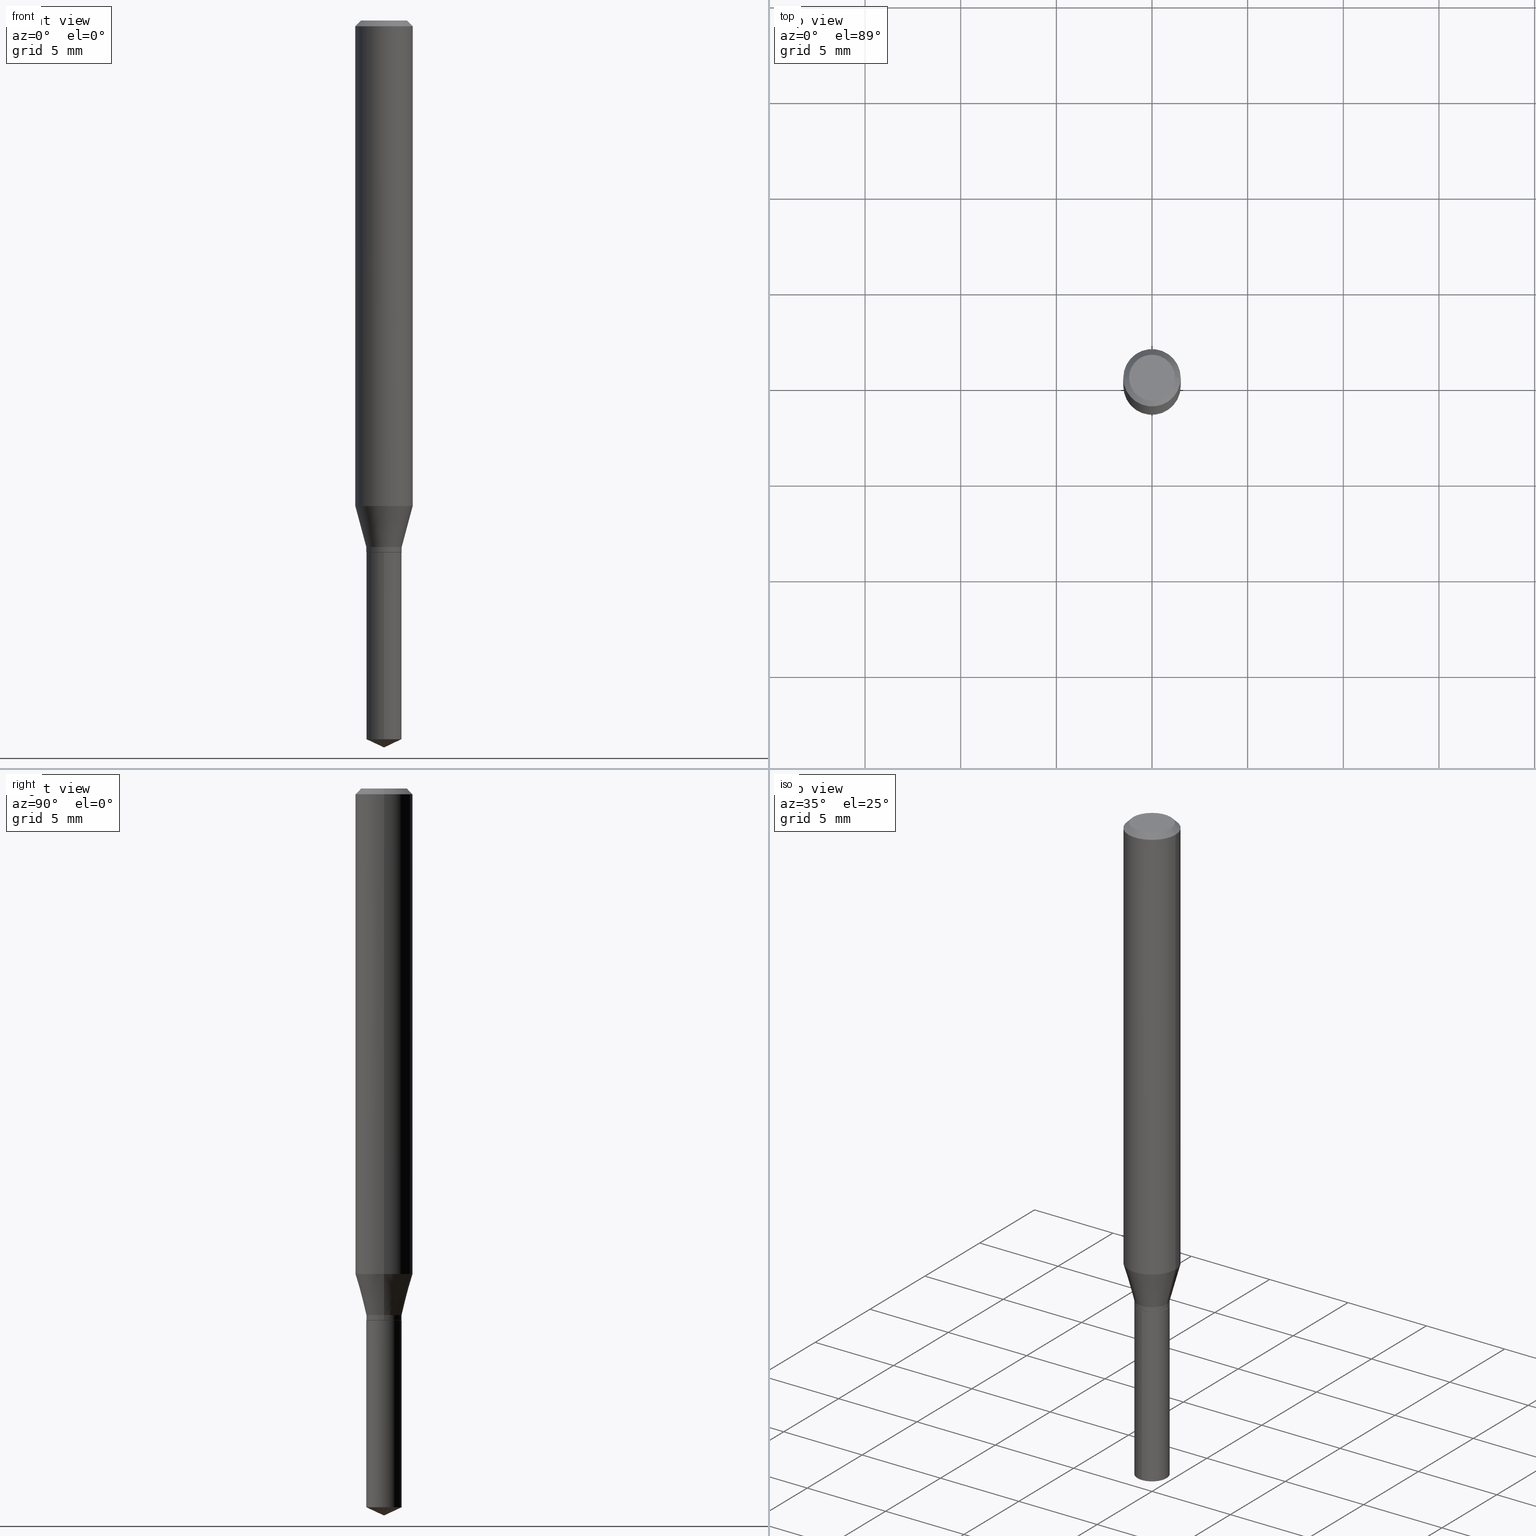
[diagram: canonical four-view strip — front | top / right | iso, engineering-drawing reading convention]
A machine part, canonical four-view strip (front | top / right | iso — engineering-drawing reading convention). The complete STEP part file that produces these views, byte-faithful:
ISO-10303-21;
HEADER;
FILE_DESCRIPTION (( 'STEP AP203' ),
    '1' );
FILE_NAME ('08363.STEP',
    '2024-04-24T14:36:49',
    ( '' ),
    ( '' ),
    'SwSTEP 2.0',
    'SolidWorks 2023',
    '' );
FILE_SCHEMA (( 'CONFIG_CONTROL_DESIGN' ));
ENDSEC;

DATA;
#1 = AXIS2_PLACEMENT_3D ( 'NONE', #402, #353, #133 ) ;
#2 = ORIENTED_EDGE ( 'NONE', *, *, #179, .T. ) ;
#3 = VERTEX_POINT ( 'NONE', #420 ) ;
#4 = APPROVAL ( #350, 'UNSPECIFIED' ) ;
#5 = ORIENTED_EDGE ( 'NONE', *, *, #47, .F. ) ;
#6 = CALENDAR_DATE ( 2024, 24, 4 ) ;
#7 = ORIENTED_EDGE ( 'NONE', *, *, #471, .F. ) ;
#8 = DIRECTION ( 'NONE',  ( -0.7071067811864176766, 7.493145998869883999E-15, 0.7071067811866772468 ) ) ;
#9 = CC_DESIGN_APPROVAL ( #4, ( #305 ) ) ;
#10 = EDGE_CURVE ( 'NONE', #390, #226, #368, .T. ) ;
#11 = CALENDAR_DATE ( 2024, 24, 4 ) ;
#12 = CARTESIAN_POINT ( 'NONE',  ( 0.000000000000000000, 0.000000000000000000, 0.000000000000000000 ) ) ;
#13 = ADVANCED_FACE ( 'NONE', ( #482 ), #489, .F. ) ;
#14 = PLANE ( 'NONE',  #290 ) ;
#15 = ADVANCED_FACE ( 'NONE', ( #487 ), #387, .T. ) ;
#16 = CONICAL_SURFACE ( 'NONE', #326, 0.03639999999999998792, 0.2617993877991501295 ) ;
#17 = APPROVAL_ROLE ( '' ) ;
#18 = DIRECTION ( 'NONE',  ( -2.445402730703145379E-29, 3.491575962694140016E-15, 1.000000000000000000 ) ) ;
#19 = LINE ( 'NONE', #92, #81 ) ;
#20 = PRODUCT_DEFINITION_SHAPE ( 'NONE', 'NONE',  #305 ) ;
#21 = FACE_OUTER_BOUND ( 'NONE', #188, .T. ) ;
#22 = FACE_OUTER_BOUND ( 'NONE', #191, .T. ) ;
#23 = VECTOR ( 'NONE', #18, 39.37007874015748143 ) ;
#24 = CARTESIAN_POINT ( 'NONE',  ( 2.649909998382213991E-29, -3.783369178770431629E-15, -1.083599999999999897 ) ) ;
#25 = CARTESIAN_POINT ( 'NONE',  ( 3.658712932950369103E-29, -5.223539666176875291E-15, -1.496099999999999985 ) ) ;
#26 = DIRECTION ( 'NONE',  ( 1.000000000000000000, -6.982962677686273810E-15, 0.000000000000000000 ) ) ;
#27 = EDGE_CURVE ( 'NONE', #270, #308, #448, .T. ) ;
#28 = DESIGN_CONTEXT ( 'detailed design', #321, 'design' ) ;
#29 = CARTESIAN_POINT ( 'NONE',  ( 8.265746106709734507E-48, -1.180129479067563789E-33, -3.380025165646692144E-19 ) ) ;
#30 = EDGE_LOOP ( 'NONE', ( #300, #99, #490, #338 ) ) ;
#31 = PLANE ( 'NONE',  #115 ) ;
#32 = ORIENTED_EDGE ( 'NONE', *, *, #378, .F. ) ;
#33 = VERTEX_POINT ( 'NONE', #453 ) ;
#34 = DIRECTION ( 'NONE',  ( 1.000000000000000000, -6.982962677686262766E-15, 0.000000000000000000 ) ) ;
#35 = ORIENTED_EDGE ( 'NONE', *, *, #483, .F. ) ;
#36 = VECTOR ( 'NONE', #71, 39.37007874015748854 ) ;
#37 = VERTEX_POINT ( 'NONE', #233 ) ;
#38 = CC_DESIGN_PERSON_AND_ORGANIZATION_ASSIGNMENT ( #307, #457, ( #268 ) ) ;
#39 = CONICAL_SURFACE ( 'NONE', #96, 84.42940631927304196, 1.134464013796310011 ) ;
#40 = AXIS2_PLACEMENT_3D ( 'NONE', #359, #215, #143 ) ;
#41 = ORIENTED_EDGE ( 'NONE', *, *, #372, .T. ) ;
#42 = DATE_AND_TIME ( #204, #417 ) ;
#43 = ORIENTED_EDGE ( 'NONE', *, *, #474, .T. ) ;
#44 = DIRECTION ( 'NONE',  ( -2.445468806185136597E-29, 3.491481338843145583E-15, 1.000000000000000000 ) ) ;
#45 = PERSON_AND_ORGANIZATION_ROLE ( 'design_supplier' ) ;
#46 = ORIENTED_EDGE ( 'NONE', *, *, #254, .F. ) ;
#47 = EDGE_CURVE ( 'NONE', #76, #270, #48, .T. ) ;
#48 = LINE ( 'NONE', #465, #153 ) ;
#49 = AXIS2_PLACEMENT_3D ( 'NONE', #120, #171, #424 ) ;
#50 = ORIENTED_EDGE ( 'NONE', *, *, #341, .F. ) ;
#51 = DIRECTION ( 'NONE',  ( -1.000000000000000000, 6.982962677686266711E-15, 0.000000000000000000 ) ) ;
#52 = CYLINDRICAL_SURFACE ( 'NONE', #49, 0.05905000000000006771 ) ;
#53 = AXIS2_PLACEMENT_3D ( 'NONE', #269, #342, #277 ) ;
#54 = EDGE_CURVE ( 'NONE', #226, #390, #60, .T. ) ;
#55 = APPROVAL_PERSON_ORGANIZATION ( #77, #275, #346 ) ;
#56 = DIRECTION ( 'NONE',  ( -2.445468806185136597E-29, 3.491481338843145583E-15, 1.000000000000000000 ) ) ;
#57 = COORDINATED_UNIVERSAL_TIME_OFFSET ( 5, 0, .BEHIND. ) ;
#58 = LINE ( 'NONE', #472, #23 ) ;
#59 = CARTESIAN_POINT ( 'NONE',  ( 2.676565608369631794E-29, -3.821426325363822773E-15, -1.094499999999999806 ) ) ;
#60 = CIRCLE ( 'NONE', #429, 0.04724000000000000421 ) ;
#61 = AXIS2_PLACEMENT_3D ( 'NONE', #488, #151, #301 ) ;
#62 = EDGE_CURVE ( 'NONE', #270, #111, #415, .T. ) ;
#63 = DIRECTION ( 'NONE',  ( 1.000000000000000000, -6.982962677686266711E-15, 4.876185090822587894E-29 ) ) ;
#64 = ORIENTED_EDGE ( 'NONE', *, *, #179, .F. ) ;
#65 = LINE ( 'NONE', #217, #452 ) ;
#66 = CARTESIAN_POINT ( 'NONE',  ( 0.03639999999999998792, -4.037549020238212015E-15, -1.083599999999999897 ) ) ;
#67 = ORIENTED_EDGE ( 'NONE', *, *, #170, .T. ) ;
#68 = DIRECTION ( 'NONE',  ( 0.7071067811865453523, -7.319954787623248157E-15, -0.7071067811865496822 ) ) ;
#69 = VERTEX_POINT ( 'NONE', #356 ) ;
#70 = APPROVAL ( #286, 'UNSPECIFIED' ) ;
#71 = DIRECTION ( 'NONE',  ( 0.7071067811864176766, -2.468850131080897064E-15, 0.7071067811866772468 ) ) ;
#72 = PERSON_AND_ORGANIZATION_ROLE ( 'creator' ) ;
#73 = AXIS2_PLACEMENT_3D ( 'NONE', #437, #134, #123 ) ;
#74 = DIRECTION ( 'NONE',  ( -2.445468806185136597E-29, 3.491481338843145583E-15, 1.000000000000000000 ) ) ;
#75 = VECTOR ( 'NONE', #438, 39.37007874015747433 ) ;
#76 = VERTEX_POINT ( 'NONE', #168 ) ;
#77 = PERSON_AND_ORGANIZATION ( #178, #377 ) ;
#78 = APPROVAL_DATE_TIME ( #42, #4 ) ;
#79 = PERSON_AND_ORGANIZATION ( #178, #377 ) ;
#80 = DIRECTION ( 'NONE',  ( -2.445468806185136597E-29, 3.491481338843145583E-15, 1.000000000000000000 ) ) ;
#81 = VECTOR ( 'NONE', #398, 39.37007874015748143 ) ;
#82 =( NAMED_UNIT ( * ) PLANE_ANGLE_UNIT ( ) SI_UNIT ( $, .RADIAN. ) );
#83 = CARTESIAN_POINT ( 'NONE',  ( 0.03590000000000000135, -4.072114685492760152E-15, -1.094500000000000028 ) ) ;
#84 = ORIENTED_EDGE ( 'NONE', *, *, #254, .T. ) ;
#85 = PERSON_AND_ORGANIZATION ( #178, #377 ) ;
#86 = CARTESIAN_POINT ( 'NONE',  ( 2.649909998382213991E-29, -3.783369178770431629E-15, -1.083599999999999897 ) ) ;
#87 = DIRECTION ( 'NONE',  ( 1.000000000000000000, -6.982962677686266711E-15, 4.876185090822587894E-29 ) ) ;
#88 = DATE_AND_TIME ( #213, #194 ) ;
#89 = CIRCLE ( 'NONE', #469, 0.03640000000000000180 ) ;
#90 = CARTESIAN_POINT ( 'NONE',  ( -0.03639999999999998792, -3.542887325915740068E-15, -1.083599999999999897 ) ) ;
#91 = CARTESIAN_POINT ( 'NONE',  ( 0.05905000000000011628, -3.900574887644841668E-15, -0.9990690492085645413 ) ) ;
#92 = CARTESIAN_POINT ( 'NONE',  ( 0.05905000000000006771, -4.123439461173745257E-16, 2.879382386107503723E-30 ) ) ;
#93 = EDGE_CURVE ( 'NONE', #455, #33, #334, .T. ) ;
#94 = CARTESIAN_POINT ( 'NONE',  ( 2.676565608369631794E-29, -3.821426325363822773E-15, -1.094499999999999806 ) ) ;
#95 = ADVANCED_FACE ( 'NONE', ( #391 ), #39, .T. ) ;
#96 = AXIS2_PLACEMENT_3D ( 'NONE', #172, #426, #236 ) ;
#97 = CARTESIAN_POINT ( 'NONE',  ( 3.658567025404975087E-29, -5.223746797786701947E-15, -1.496099999999999985 ) ) ;
#98 = CIRCLE ( 'NONE', #126, 0.03640000000000000180 ) ;
#99 = ORIENTED_EDGE ( 'NONE', *, *, #246, .T. ) ;
#100 = EDGE_CURVE ( 'NONE', #111, #270, #247, .T. ) ;
#101 = DIMENSIONAL_EXPONENTS ( 1.000000000000000000, 0.000000000000000000, 0.000000000000000000, 0.000000000000000000, 0.000000000000000000, 0.000000000000000000, 0.000000000000000000 ) ;
#102 = CARTESIAN_POINT ( 'NONE',  ( 4.132873053354867254E-48, -5.900647395337818946E-34, -1.690012582823346072E-19 ) ) ;
#103 = DIRECTION ( 'NONE',  ( 1.000000000000000000, -6.982962677686262766E-15, 0.000000000000000000 ) ) ;
#104 = FACE_OUTER_BOUND ( 'NONE', #485, .T. ) ;
#105 = MECHANICAL_CONTEXT ( 'NONE', #315, 'mechanical' ) ;
#106 = DIRECTION ( 'NONE',  ( 0.2588190451025214611, 1.565188264969621573E-15, 0.9659258262890682012 ) ) ;
#107 = AXIS2_PLACEMENT_3D ( 'NONE', #102, #299, #364 ) ;
#108 = ORIENTED_EDGE ( 'NONE', *, *, #100, .F. ) ;
#109 = VERTEX_POINT ( 'NONE', #351 ) ;
#110 = ADVANCED_FACE ( 'NONE', ( #475 ), #128, .T. ) ;
#111 = VERTEX_POINT ( 'NONE', #90 ) ;
#112 = VERTEX_POINT ( 'NONE', #83 ) ;
#113 = ORIENTED_EDGE ( 'NONE', *, *, #10, .F. ) ;
#114 = AXIS2_PLACEMENT_3D ( 'NONE', #250, #258, #332 ) ;
#115 = AXIS2_PLACEMENT_3D ( 'NONE', #193, #139, #362 ) ;
#116 = APPLICATION_PROTOCOL_DEFINITION ( 'international standard', 'config_control_design', 1994, #315 ) ;
#117 = EDGE_LOOP ( 'NONE', ( #199, #43, #330, #206 ) ) ;
#118 = CARTESIAN_POINT ( 'NONE',  ( -0.05904999999999999832, 3.711095515056362547E-16, -0.01181000000000007044 ) ) ;
#119 = EDGE_LOOP ( 'NONE', ( #160, #454, #306, #50 ) ) ;
#120 = CARTESIAN_POINT ( 'NONE',  ( 0.000000000000000000, 0.000000000000000000, 0.000000000000000000 ) ) ;
#121 = ORIENTED_EDGE ( 'NONE', *, *, #62, .T. ) ;
#122 = AXIS2_PLACEMENT_3D ( 'NONE', #276, #318, #349 ) ;
#123 = DIRECTION ( 'NONE',  ( 1.000000000000000000, -6.982962677686267499E-15, 4.876176775795936353E-29 ) ) ;
#124 = DIRECTION ( 'NONE',  ( 1.000000000000000000, -6.982962677686265133E-15, 0.000000000000000000 ) ) ;
#125 = CC_DESIGN_PERSON_AND_ORGANIZATION_ASSIGNMENT ( #386, #72, ( #305 ) ) ;
#126 = AXIS2_PLACEMENT_3D ( 'NONE', #287, #180, #174 ) ;
#127 = CARTESIAN_POINT ( 'NONE',  ( 2.888098660104663766E-31, -4.123439461173779647E-17, -0.01181000000000007044 ) ) ;
#128 = CYLINDRICAL_SURFACE ( 'NONE', #73, 0.03639999999999998792 ) ;
#129 = DIRECTION ( 'NONE',  ( -2.445468806185136877E-29, 3.491481338843145188E-15, 1.000000000000000000 ) ) ;
#130 = CARTESIAN_POINT ( 'NONE',  ( -0.03639999999999998792, -3.524731622953755642E-15, -1.083599999999999897 ) ) ;
#131 = ADVANCED_FACE ( 'NONE', ( #21 ), #190, .T. ) ;
#132 = FACE_OUTER_BOUND ( 'NONE', #119, .T. ) ;
#133 = DIRECTION ( 'NONE',  ( -6.982962677686267499E-15, -1.000000000000000000, 3.520397390770507907E-15 ) ) ;
#134 = DIRECTION ( 'NONE',  ( -2.445468806185136597E-29, 3.491481338843145583E-15, 1.000000000000000000 ) ) ;
#135 = DIRECTION ( 'NONE',  ( -2.445468806185136597E-29, 3.491481338843145583E-15, 1.000000000000000000 ) ) ;
#136 = CARTESIAN_POINT ( 'NONE',  ( -0.03639999999999998792, 2.586375558166763818E-16, -1.790492372852785260E-30 ) ) ;
#137 = AXIS2_PLACEMENT_3D ( 'NONE', #288, #436, #243 ) ;
#138 = CARTESIAN_POINT ( 'NONE',  ( 0.000000000000000000, 0.000000000000000000, 0.000000000000000000 ) ) ;
#139 = DIRECTION ( 'NONE',  ( -2.438088387897960049E-29, 3.491481338843145188E-15, 1.000000000000000000 ) ) ;
#140 = DIRECTION ( 'NONE',  ( -2.445468806185136597E-29, 3.491481338843145583E-15, 1.000000000000000000 ) ) ;
#141 = VECTOR ( 'NONE', #363, 39.37007874015748143 ) ;
#142 = CARTESIAN_POINT ( 'NONE',  ( 0.03590000000000000135, -4.072114685492760152E-15, -1.094500000000000028 ) ) ;
#143 = DIRECTION ( 'NONE',  ( 1.000000000000000000, -6.982962677686262766E-15, 0.000000000000000000 ) ) ;
#144 = LOCAL_TIME ( 10, 36, 49.00000000000000000, #320 ) ;
#145 = CARTESIAN_POINT ( 'NONE',  ( 2.675342873966538993E-29, -3.819680584694400481E-15, -1.093999999999999861 ) ) ;
#146 = DIRECTION ( 'NONE',  ( -6.328713451373357546E-15, -0.9063077870366467170, 0.4226182617407064357 ) ) ;
#147 = VERTEX_POINT ( 'NONE', #484 ) ;
#148 = PERSON_AND_ORGANIZATION ( #178, #377 ) ;
#149 = DIRECTION ( 'NONE',  ( -2.445468806185136597E-29, 3.491481338843145583E-15, 1.000000000000000000 ) ) ;
#150 = ORIENTED_EDGE ( 'NONE', *, *, #10, .T. ) ;
#151 = DIRECTION ( 'NONE',  ( -2.445468806185136597E-29, 3.491481338843145583E-15, 1.000000000000000000 ) ) ;
#152 = PRODUCT_RELATED_PRODUCT_CATEGORY ( 'detail', '', ( #244 ) ) ;
#153 = VECTOR ( 'NONE', #129, 39.37007874015748143 ) ;
#154 = ORIENTED_EDGE ( 'NONE', *, *, #296, .T. ) ;
#155 = ORIENTED_EDGE ( 'NONE', *, *, #159, .F. ) ;
#156 = AXIS2_PLACEMENT_3D ( 'NONE', #447, #253, #26 ) ;
#157 = ORIENTED_EDGE ( 'NONE', *, *, #54, .F. ) ;
#158 = EDGE_LOOP ( 'NONE', ( #196, #150 ) ) ;
#159 = EDGE_CURVE ( 'NONE', #109, #111, #401, .T. ) ;
#160 = ORIENTED_EDGE ( 'NONE', *, *, #483, .T. ) ;
#161 = COORDINATED_UNIVERSAL_TIME_OFFSET ( 5, 0, .BEHIND. ) ;
#162 = EDGE_LOOP ( 'NONE', ( #413, #468, #232, #5 ) ) ;
#163 = MANIFOLD_SOLID_BREP ( 'Body-Move/Copy2[1]', #358 ) ;
#164 = APPLICATION_PROTOCOL_DEFINITION ( 'international standard', 'config_control_design', 1994, #321 ) ;
#165 = DIRECTION ( 'NONE',  ( 6.982962677686265922E-15, 1.000000000000000000, -3.491575962694140016E-15 ) ) ;
#166 = CC_DESIGN_SECURITY_CLASSIFICATION ( #379, ( #268 ) ) ;
#167 = MANIFOLD_SOLID_BREP ( 'Body-Move/Copy2[2]', #345 ) ;
#168 = CARTESIAN_POINT ( 'NONE',  ( 0.03639999999999998792, -4.073860426162180867E-15, -1.093999999999999861 ) ) ;
#169 =( NAMED_UNIT ( * ) SI_UNIT ( $, .STERADIAN. ) SOLID_ANGLE_UNIT ( ) );
#170 = EDGE_CURVE ( 'NONE', #418, #3, #476, .T. ) ;
#171 = DIRECTION ( 'NONE',  ( -2.445468806185136597E-29, 3.491481338843145583E-15, 1.000000000000000000 ) ) ;
#172 = CARTESIAN_POINT ( 'NONE',  ( -9.261705871415894043E-28, 1.322399773465276608E-13, 37.87397874015748300 ) ) ;
#173 = CONICAL_SURFACE ( 'NONE', #192, 0.05904999999999999832, 0.7853981633974452814 ) ;
#174 = DIRECTION ( 'NONE',  ( -6.982962677686265922E-15, -1.000000000000000000, 0.000000000000000000 ) ) ;
#175 = ORIENTED_EDGE ( 'NONE', *, *, #237, .F. ) ;
#176 = CARTESIAN_POINT ( 'NONE',  ( 8.265746106709734507E-48, -1.180129479067563789E-33, -3.380025165646692144E-19 ) ) ;
#177 = FACE_OUTER_BOUND ( 'NONE', #274, .T. ) ;
#178 = PERSON ( 'UNSPECIFIED', 'UNSPECIFIED', 'UNSPECIFIED', ('UNSPECIFIED'), ('UNSPECIFIED'), ('UNSPECIFIED') ) ;
#179 = EDGE_CURVE ( 'NONE', #109, #76, #248, .T. ) ;
#180 = DIRECTION ( 'NONE',  ( -2.445402730703145379E-29, 3.491575962694140016E-15, 1.000000000000000000 ) ) ;
#181 = CARTESIAN_POINT ( 'NONE',  ( 0.03639999999999998792, -4.037549020238212015E-15, -1.083599999999999897 ) ) ;
#182 = DIRECTION ( 'NONE',  ( -2.445402730703145379E-29, 3.491575962694140016E-15, 1.000000000000000000 ) ) ;
#183 = CONICAL_SURFACE ( 'NONE', #40, 0.03639999999999998792, 0.2617993877991501295 ) ;
#184 = ADVANCED_BREP_SHAPE_REPRESENTATION ( '08363', ( #163, #167, #295 ), #249 ) ;
#185 = DIRECTION ( 'NONE',  ( 1.000000000000000000, -6.982962677686267499E-15, 4.876176775795936353E-29 ) ) ;
#186 = DIRECTION ( 'NONE',  ( -2.445468806185136597E-29, 3.491481338843145583E-15, 1.000000000000000000 ) ) ;
#187 = CC_DESIGN_DATE_AND_TIME_ASSIGNMENT ( #88, #434, ( #379 ) ) ;
#188 = EDGE_LOOP ( 'NONE', ( #220, #374, #216, #380 ) ) ;
#189 = DIRECTION ( 'NONE',  ( 6.439704144417012209E-15, 0.9063077870366496036, 0.4226182617407001074 ) ) ;
#190 = CYLINDRICAL_SURFACE ( 'NONE', #227, 0.03640000000000000180 ) ;
#191 = EDGE_LOOP ( 'NONE', ( #266, #251, #200, #64 ) ) ;
#192 = AXIS2_PLACEMENT_3D ( 'NONE', #127, #240, #51 ) ;
#193 = CARTESIAN_POINT ( 'NONE',  ( -2.313886645776993387E-30, -7.985782354703010177E-15, -1.094500000000000028 ) ) ;
#194 = LOCAL_TIME ( 10, 36, 49.00000000000000000, #57 ) ;
#195 = EDGE_CURVE ( 'NONE', #147, #261, #361, .T. ) ;
#196 = ORIENTED_EDGE ( 'NONE', *, *, #54, .T. ) ;
#197 = DIRECTION ( 'NONE',  ( -6.982962677686265922E-15, -1.000000000000000000, 3.752538452835526126E-15 ) ) ;
#198 = CC_DESIGN_PERSON_AND_ORGANIZATION_ASSIGNMENT ( #460, #45, ( #268 ) ) ;
#199 = ORIENTED_EDGE ( 'NONE', *, *, #294, .T. ) ;
#200 = ORIENTED_EDGE ( 'NONE', *, *, #202, .T. ) ;
#201 = ORIENTED_EDGE ( 'NONE', *, *, #294, .F. ) ;
#202 = EDGE_CURVE ( 'NONE', #112, #76, #325, .T. ) ;
#203 = LINE ( 'NONE', #442, #214 ) ;
#204 = CALENDAR_DATE ( 2024, 24, 4 ) ;
#205 = LINE ( 'NONE', #344, #431 ) ;
#206 = ORIENTED_EDGE ( 'NONE', *, *, #210, .F. ) ;
#207 = AXIS2_PLACEMENT_3D ( 'NONE', #404, #443, #185 ) ;
#208 = DIRECTION ( 'NONE',  ( 1.000000000000000000, -6.982962677686262766E-15, 0.000000000000000000 ) ) ;
#209 = DIRECTION ( 'NONE',  ( -2.445468806185136877E-29, 3.491481338843145188E-15, 1.000000000000000000 ) ) ;
#210 = EDGE_CURVE ( 'NONE', #456, #147, #225, .T. ) ;
#211 = AXIS2_PLACEMENT_3D ( 'NONE', #381, #44, #124 ) ;
#212 = DIRECTION ( 'NONE',  ( 1.000000000000000000, -6.982962677686265133E-15, 0.000000000000000000 ) ) ;
#213 = CALENDAR_DATE ( 2024, 24, 4 ) ;
#214 = VECTOR ( 'NONE', #209, 39.37007874015748143 ) ;
#215 = DIRECTION ( 'NONE',  ( -2.445468806185136597E-29, 3.491481338843145583E-15, 1.000000000000000000 ) ) ;
#216 = ORIENTED_EDGE ( 'NONE', *, *, #210, .T. ) ;
#217 = CARTESIAN_POINT ( 'NONE',  ( 3.658567025404975087E-29, -5.223746797786701947E-15, -1.496099999999999985 ) ) ;
#218 = ADVANCED_FACE ( 'NONE', ( #479 ), #310, .T. ) ;
#219 = EDGE_CURVE ( 'NONE', #33, #455, #412, .T. ) ;
#220 = ORIENTED_EDGE ( 'NONE', *, *, #474, .F. ) ;
#221 = CARTESIAN_POINT ( 'NONE',  ( 0.04724000000000000421, -3.852183633974369345E-16, -3.380025165621689721E-19 ) ) ;
#222 = CC_DESIGN_APPROVAL ( #70, ( #379 ) ) ;
#223 = EDGE_LOOP ( 'NONE', ( #302, #67, #201 ) ) ;
#224 = ORIENTED_EDGE ( 'NONE', *, *, #27, .T. ) ;
#225 = LINE ( 'NONE', #376, #441 ) ;
#226 = VERTEX_POINT ( 'NONE', #392 ) ;
#227 = AXIS2_PLACEMENT_3D ( 'NONE', #403, #328, #292 ) ;
#228 = PERSON_AND_ORGANIZATION ( #178, #377 ) ;
#229 = CONICAL_SURFACE ( 'NONE', #114, 0.05904999999999999832, 0.7853981633974452814 ) ;
#230 = DIRECTION ( 'NONE',  ( 1.000000000000000000, 0.000000000000000000, 0.000000000000000000 ) ) ;
#231 = ORIENTED_EDGE ( 'NONE', *, *, #296, .F. ) ;
#232 = ORIENTED_EDGE ( 'NONE', *, *, #62, .F. ) ;
#233 = CARTESIAN_POINT ( 'NONE',  ( -0.03590000000000000135, -3.563692256051836089E-15, -1.094500000000000028 ) ) ;
#234 = CARTESIAN_POINT ( 'NONE',  ( 2.888098660104663766E-31, -4.123439461173779647E-17, -0.01181000000000007044 ) ) ;
#235 = PERSON_AND_ORGANIZATION_ROLE ( 'classification_officer' ) ;
#236 = DIRECTION ( 'NONE',  ( -6.982962677686267499E-15, -1.000000000000000000, 3.520397390770507907E-15 ) ) ;
#237 = EDGE_CURVE ( 'NONE', #69, #308, #470, .T. ) ;
#238 = APPROVAL_DATE_TIME ( #478, #70 ) ;
#239 = CALENDAR_DATE ( 2024, 24, 4 ) ;
#240 = DIRECTION ( 'NONE',  ( 2.445468806185136597E-29, -3.491481338843145583E-15, -1.000000000000000000 ) ) ;
#241 = LOCAL_TIME ( 10, 36, 49.00000000000000000, #161 ) ;
#242 = CARTESIAN_POINT ( 'NONE',  ( -2.541798414677438025E-16, -0.03640000000000515740, -1.479126401243157751 ) ) ;
#243 = DIRECTION ( 'NONE',  ( 1.000000000000000000, -6.982962677686273810E-15, 0.000000000000000000 ) ) ;
#244 = PRODUCT ( '08363', '08363', '', ( #105 ) ) ;
#245 = DIRECTION ( 'NONE',  ( 1.000000000000000000, -6.982962677686266711E-15, 4.876176775795936353E-29 ) ) ;
#246 = EDGE_CURVE ( 'NONE', #37, #109, #205, .T. ) ;
#247 = CIRCLE ( 'NONE', #375, 0.03639999999999998792 ) ;
#248 = CIRCLE ( 'NONE', #336, 0.03639999999999998792 ) ;
#249 =( GEOMETRIC_REPRESENTATION_CONTEXT ( 3 ) GLOBAL_UNCERTAINTY_ASSIGNED_CONTEXT ( ( #337 ) ) GLOBAL_UNIT_ASSIGNED_CONTEXT ( ( #273, #82, #169 ) ) REPRESENTATION_CONTEXT ( 'NONE', 'WORKASPACE' ) );
#250 = CARTESIAN_POINT ( 'NONE',  ( 2.888098660104663766E-31, -4.123439461173779647E-17, -0.01181000000000007044 ) ) ;
#251 = ORIENTED_EDGE ( 'NONE', *, *, #445, .T. ) ;
#252 = ADVANCED_FACE ( 'NONE', ( #427 ), #14, .F. ) ;
#253 = DIRECTION ( 'NONE',  ( -2.445468806185136597E-29, 3.491481338843145583E-15, 1.000000000000000000 ) ) ;
#254 = EDGE_CURVE ( 'NONE', #226, #33, #271, .T. ) ;
#255 = DIRECTION ( 'NONE',  ( -2.445468806185136597E-29, 3.491481338843145583E-15, 1.000000000000000000 ) ) ;
#256 = DIRECTION ( 'NONE',  ( -2.445402730703145379E-29, 3.491575962694140016E-15, 1.000000000000000000 ) ) ;
#257 = EDGE_LOOP ( 'NONE', ( #32, #157, #84, #316 ) ) ;
#258 = DIRECTION ( 'NONE',  ( 2.445468806185136597E-29, -3.491481338843145583E-15, -1.000000000000000000 ) ) ;
#259 = VECTOR ( 'NONE', #106, 39.37007874015747433 ) ;
#260 = CARTESIAN_POINT ( 'NONE',  ( 2.676565608369632355E-29, -3.821426325363822773E-15, -1.094500000000000028 ) ) ;
#261 = VERTEX_POINT ( 'NONE', #466 ) ;
#262 = CIRCLE ( 'NONE', #61, 0.03590000000000000135 ) ;
#263 = EDGE_LOOP ( 'NONE', ( #370, #365 ) ) ;
#264 = EDGE_CURVE ( 'NONE', #69, #33, #203, .T. ) ;
#265 = AXIS2_PLACEMENT_3D ( 'NONE', #234, #74, #384 ) ;
#266 = ORIENTED_EDGE ( 'NONE', *, *, #246, .F. ) ;
#267 = ORIENTED_EDGE ( 'NONE', *, *, #237, .T. ) ;
#268 = PRODUCT_DEFINITION_FORMATION_WITH_SPECIFIED_SOURCE ( 'ANY', '', #244, .NOT_KNOWN. ) ;
#269 = CARTESIAN_POINT ( 'NONE',  ( 2.676565608369631794E-29, -3.821426325363822773E-15, -1.094499999999999806 ) ) ;
#270 = VERTEX_POINT ( 'NONE', #181 ) ;
#271 = LINE ( 'NONE', #118, #329 ) ;
#272 = SECURITY_CLASSIFICATION_LEVEL ( 'unclassified' ) ;
#273 =( CONVERSION_BASED_UNIT ( 'INCH', #279 ) LENGTH_UNIT ( ) NAMED_UNIT ( #101 ) );
#274 = EDGE_LOOP ( 'NONE', ( #414, #267, #383, #446 ) ) ;
#275 = APPROVAL ( #423, 'UNSPECIFIED' ) ;
#276 = CARTESIAN_POINT ( 'NONE',  ( 2.888098660104663766E-31, -4.123439461173779647E-17, -0.01181000000000007044 ) ) ;
#277 = DIRECTION ( 'NONE',  ( -6.982962677686265922E-15, -1.000000000000000000, 3.752538452835526126E-15 ) ) ;
#278 = DATE_TIME_ROLE ( 'creation_date' ) ;
#279 = LENGTH_MEASURE_WITH_UNIT ( LENGTH_MEASURE( 0.02539999999999999897 ), #388 );
#280 = AXIS2_PLACEMENT_3D ( 'NONE', #29, #149, #63 ) ;
#281 = CIRCLE ( 'NONE', #137, 0.03590000000000000135 ) ;
#282 = ADVANCED_FACE ( 'NONE', ( #177 ), #284, .T. ) ;
#283 = CARTESIAN_POINT ( 'NONE',  ( 2.649909998382213991E-29, -3.783369178770431629E-15, -1.083599999999999897 ) ) ;
#284 = CYLINDRICAL_SURFACE ( 'NONE', #369, 0.05905000000000006771 ) ;
#285 = CC_DESIGN_DATE_AND_TIME_ASSIGNMENT ( #464, #278, ( #305 ) ) ;
#286 = APPROVAL_STATUS ( 'not_yet_approved' ) ;
#287 = CARTESIAN_POINT ( 'NONE',  ( 3.617132060270173400E-29, -5.164378622561984318E-15, -1.479126401243157751 ) ) ;
#288 = CARTESIAN_POINT ( 'NONE',  ( 2.676565608369632355E-29, -3.821426325363822773E-15, -1.094500000000000028 ) ) ;
#289 = LINE ( 'NONE', #130, #75 ) ;
#290 = AXIS2_PLACEMENT_3D ( 'NONE', #313, #462, #165 ) ;
#291 = FACE_OUTER_BOUND ( 'NONE', #373, .T. ) ;
#292 = DIRECTION ( 'NONE',  ( -6.982962677686265922E-15, -1.000000000000000000, 3.752538452835526126E-15 ) ) ;
#293 = DIRECTION ( 'NONE',  ( 1.000000000000000000, -6.982962677686262766E-15, 0.000000000000000000 ) ) ;
#294 = EDGE_CURVE ( 'NONE', #456, #3, #322, .T. ) ;
#295 = AXIS2_PLACEMENT_3D ( 'NONE', #12, #430, #230 ) ;
#296 = EDGE_CURVE ( 'NONE', #111, #69, #289, .T. ) ;
#297 = CARTESIAN_POINT ( 'NONE',  ( 0.05904999999999999832, -4.463468013801466955E-16, -0.01181000000000007044 ) ) ;
#298 = APPROVAL_ROLE ( '' ) ;
#299 = DIRECTION ( 'NONE',  ( 2.438088387897960049E-29, -3.491481338843145188E-15, -1.000000000000000000 ) ) ;
#300 = ORIENTED_EDGE ( 'NONE', *, *, #312, .T. ) ;
#301 = DIRECTION ( 'NONE',  ( 1.000000000000000000, -6.982962677686273810E-15, 0.000000000000000000 ) ) ;
#302 = ORIENTED_EDGE ( 'NONE', *, *, #395, .F. ) ;
#303 = VECTOR ( 'NONE', #68, 39.37007874015748143 ) ;
#304 = CC_DESIGN_APPROVAL ( #275, ( #268 ) ) ;
#305 = PRODUCT_DEFINITION ( 'UNKNOWN', '', #268, #28 ) ;
#306 = ORIENTED_EDGE ( 'NONE', *, *, #93, .F. ) ;
#307 = PERSON_AND_ORGANIZATION ( #178, #377 ) ;
#308 = VERTEX_POINT ( 'NONE', #91 ) ;
#309 = ADVANCED_FACE ( 'NONE', ( #399 ), #354, .T. ) ;
#310 = CYLINDRICAL_SURFACE ( 'NONE', #53, 0.03640000000000000180 ) ;
#311 = APPROVAL_DATE_TIME ( #382, #275 ) ;
#312 = EDGE_CURVE ( 'NONE', #112, #37, #281, .T. ) ;
#313 = CARTESIAN_POINT ( 'NONE',  ( 2.676565608369631794E-29, -3.821426325363822773E-15, -1.094499999999999806 ) ) ;
#314 = DIRECTION ( 'NONE',  ( -0.7071067811865453523, 2.468850131082234184E-15, -0.7071067811865496822 ) ) ;
#315 = APPLICATION_CONTEXT ( 'configuration controlled 3d designs of mechanical parts and assemblies' ) ;
#316 = ORIENTED_EDGE ( 'NONE', *, *, #219, .T. ) ;
#317 = DIRECTION ( 'NONE',  ( -2.445402730703145379E-29, 3.491575962694140016E-15, 1.000000000000000000 ) ) ;
#318 = DIRECTION ( 'NONE',  ( -2.445468806185136597E-29, 3.491481338843145583E-15, 1.000000000000000000 ) ) ;
#319 = CARTESIAN_POINT ( 'NONE',  ( 3.617132060270173400E-29, -5.164378622561984318E-15, -1.479126401243157751 ) ) ;
#320 = COORDINATED_UNIVERSAL_TIME_OFFSET ( 5, 0, .BEHIND. ) ;
#321 = APPLICATION_CONTEXT ( 'configuration controlled 3d designs of mechanical parts and assemblies' ) ;
#322 = CIRCLE ( 'NONE', #348, 0.03640000000000000180 ) ;
#323 = FACE_OUTER_BOUND ( 'NONE', #263, .T. ) ;
#324 = CARTESIAN_POINT ( 'NONE',  ( 2.675342873966538993E-29, -3.819680584694400481E-15, -1.093999999999999861 ) ) ;
#325 = LINE ( 'NONE', #142, #36 ) ;
#326 = AXIS2_PLACEMENT_3D ( 'NONE', #24, #186, #34 ) ;
#327 = ORIENTED_EDGE ( 'NONE', *, *, #47, .T. ) ;
#328 = DIRECTION ( 'NONE',  ( -2.445402730703145379E-29, 3.491575962694140016E-15, 1.000000000000000000 ) ) ;
#329 = VECTOR ( 'NONE', #314, 39.37007874015748143 ) ;
#330 = ORIENTED_EDGE ( 'NONE', *, *, #195, .F. ) ;
#331 = FACE_OUTER_BOUND ( 'NONE', #406, .T. ) ;
#332 = DIRECTION ( 'NONE',  ( -1.000000000000000000, 6.982962677686266711E-15, 0.000000000000000000 ) ) ;
#333 = CC_DESIGN_PERSON_AND_ORGANIZATION_ASSIGNMENT ( #79, #235, ( #379 ) ) ;
#334 = CIRCLE ( 'NONE', #122, 0.05904999999999999832 ) ;
#335 = AXIS2_PLACEMENT_3D ( 'NONE', #324, #140, #293 ) ;
#336 = AXIS2_PLACEMENT_3D ( 'NONE', #145, #439, #103 ) ;
#337 = UNCERTAINTY_MEASURE_WITH_UNIT (LENGTH_MEASURE( 1.000000000000000082E-05 ), #273, 'distance_accuracy_value', 'NONE');
#338 = ORIENTED_EDGE ( 'NONE', *, *, #202, .F. ) ;
#339 = COORDINATED_UNIVERSAL_TIME_OFFSET ( 5, 0, .BEHIND. ) ;
#340 = ORIENTED_EDGE ( 'NONE', *, *, #27, .F. ) ;
#341 = EDGE_CURVE ( 'NONE', #308, #455, #19, .T. ) ;
#342 = DIRECTION ( 'NONE',  ( -2.445402730703145379E-29, 3.491575962694140016E-15, 1.000000000000000000 ) ) ;
#343 = ADVANCED_FACE ( 'NONE', ( #291 ), #183, .T. ) ;
#344 = CARTESIAN_POINT ( 'NONE',  ( -0.03590000000000000135, -3.566341483225947290E-15, -1.094500000000000028 ) ) ;
#345 = CLOSED_SHELL ( 'NONE', ( #15, #425, #461, #405, #397, #110, #343, #282, #481, #13, #400, #360 ) ) ;
#346 = APPROVAL_ROLE ( '' ) ;
#347 = ORIENTED_EDGE ( 'NONE', *, *, #93, .T. ) ;
#348 = AXIS2_PLACEMENT_3D ( 'NONE', #319, #317, #357 ) ;
#349 = DIRECTION ( 'NONE',  ( 1.000000000000000000, -6.982962677686266711E-15, 0.000000000000000000 ) ) ;
#350 = APPROVAL_STATUS ( 'not_yet_approved' ) ;
#351 = CARTESIAN_POINT ( 'NONE',  ( -0.03639999999999998792, -3.542887325915740068E-15, -1.093999999999999861 ) ) ;
#352 = SHAPE_DEFINITION_REPRESENTATION ( #20, #184 ) ;
#353 = DIRECTION ( 'NONE',  ( -2.445402730703145379E-29, 3.491575962694140016E-15, 1.000000000000000000 ) ) ;
#354 = CONICAL_SURFACE ( 'NONE', #1, 84.42940631927304196, 1.134464013796310011 ) ;
#355 = ORIENTED_EDGE ( 'NONE', *, *, #170, .F. ) ;
#356 = CARTESIAN_POINT ( 'NONE',  ( -0.05905000000000011628, -3.068655456061127255E-15, -0.9990690492085645413 ) ) ;
#357 = DIRECTION ( 'NONE',  ( -6.982962677686265922E-15, -1.000000000000000000, 0.000000000000000000 ) ) ;
#358 = CLOSED_SHELL ( 'NONE', ( #218, #95, #309, #131, #252 ) ) ;
#359 = CARTESIAN_POINT ( 'NONE',  ( 2.649909998382213991E-29, -3.783369178770431629E-15, -1.083599999999999897 ) ) ;
#360 = ADVANCED_FACE ( 'NONE', ( #22 ), #389, .T. ) ;
#361 = CIRCLE ( 'NONE', #422, 0.03640000000000000180 ) ;
#362 = DIRECTION ( 'NONE',  ( 1.000000000000000000, -6.982962677686265922E-15, 4.876176775795935793E-29 ) ) ;
#363 = DIRECTION ( 'NONE',  ( -2.445468806185136877E-29, 3.491481338843145188E-15, 1.000000000000000000 ) ) ;
#364 = DIRECTION ( 'NONE',  ( -1.000000000000000000, 6.982962677686265922E-15, -4.876176775795935793E-29 ) ) ;
#365 = ORIENTED_EDGE ( 'NONE', *, *, #445, .F. ) ;
#366 = CYLINDRICAL_SURFACE ( 'NONE', #207, 0.03639999999999998792 ) ;
#367 = PERSON_AND_ORGANIZATION_ROLE ( 'design_owner' ) ;
#368 = CIRCLE ( 'NONE', #280, 0.04724000000000000421 ) ;
#369 = AXIS2_PLACEMENT_3D ( 'NONE', #138, #135, #245 ) ;
#370 = ORIENTED_EDGE ( 'NONE', *, *, #312, .F. ) ;
#371 = FACE_OUTER_BOUND ( 'NONE', #162, .T. ) ;
#372 = EDGE_CURVE ( 'NONE', #261, #147, #89, .T. ) ;
#373 = EDGE_LOOP ( 'NONE', ( #231, #463, #224, #175 ) ) ;
#374 = ORIENTED_EDGE ( 'NONE', *, *, #471, .T. ) ;
#375 = AXIS2_PLACEMENT_3D ( 'NONE', #86, #80, #433 ) ;
#376 = CARTESIAN_POINT ( 'NONE',  ( -2.541798414677533675E-16, -0.03640000000000382513, -1.094499999999999806 ) ) ;
#377 = ORGANIZATION ( 'UNSPECIFIED', 'UNSPECIFIED', '' ) ;
#378 = EDGE_CURVE ( 'NONE', #390, #455, #486, .T. ) ;
#379 = SECURITY_CLASSIFICATION ( '', '', #272 ) ;
#380 = ORIENTED_EDGE ( 'NONE', *, *, #372, .F. ) ;
#381 = CARTESIAN_POINT ( 'NONE',  ( 2.443192195064587800E-29, -3.488230941527467537E-15, -0.9990690492085645413 ) ) ;
#382 = DATE_AND_TIME ( #11, #241 ) ;
#383 = ORIENTED_EDGE ( 'NONE', *, *, #341, .T. ) ;
#384 = DIRECTION ( 'NONE',  ( 1.000000000000000000, -6.982962677686266711E-15, 0.000000000000000000 ) ) ;
#385 = ORIENTED_EDGE ( 'NONE', *, *, #195, .T. ) ;
#386 = PERSON_AND_ORGANIZATION ( #178, #377 ) ;
#387 = CONICAL_SURFACE ( 'NONE', #451, 0.03590000000000000135, 0.7853981633972647591 ) ;
#388 =( LENGTH_UNIT ( ) NAMED_UNIT ( * ) SI_UNIT ( $, .METRE. ) );
#389 = CONICAL_SURFACE ( 'NONE', #156, 0.03590000000000000135, 0.7853981633972647591 ) ;
#390 = VERTEX_POINT ( 'NONE', #221 ) ;
#391 = FACE_OUTER_BOUND ( 'NONE', #223, .T. ) ;
#392 = CARTESIAN_POINT ( 'NONE',  ( -0.04724000000000000421, 3.504923541997677355E-16, -3.380025165670481712E-19 ) ) ;
#393 = FACE_OUTER_BOUND ( 'NONE', #257, .T. ) ;
#394 = DIRECTION ( 'NONE',  ( -2.445468806185136597E-29, 3.491481338843145583E-15, 1.000000000000000000 ) ) ;
#395 = EDGE_CURVE ( 'NONE', #418, #456, #65, .T. ) ;
#396 = CIRCLE ( 'NONE', #444, 0.05905000000000013016 ) ;
#397 = ADVANCED_FACE ( 'NONE', ( #371 ), #366, .T. ) ;
#398 = DIRECTION ( 'NONE',  ( -2.445468806185136877E-29, 3.491481338843145188E-15, 1.000000000000000000 ) ) ;
#399 = FACE_OUTER_BOUND ( 'NONE', #458, .T. ) ;
#400 = ADVANCED_FACE ( 'NONE', ( #323 ), #31, .F. ) ;
#401 = LINE ( 'NONE', #136, #141 ) ;
#402 = CARTESIAN_POINT ( 'NONE',  ( -9.261705871415894043E-28, 1.322399773465276608E-13, 37.87397874015748300 ) ) ;
#403 = CARTESIAN_POINT ( 'NONE',  ( 2.676565608369631794E-29, -3.821426325363822773E-15, -1.094499999999999806 ) ) ;
#404 = CARTESIAN_POINT ( 'NONE',  ( 0.000000000000000000, 0.000000000000000000, 0.000000000000000000 ) ) ;
#405 = ADVANCED_FACE ( 'NONE', ( #331 ), #16, .T. ) ;
#406 = EDGE_LOOP ( 'NONE', ( #121, #154, #35, #340 ) ) ;
#407 = DIRECTION ( 'NONE',  ( -2.445402730703145379E-29, 3.491575962694140016E-15, 1.000000000000000000 ) ) ;
#408 = DIRECTION ( 'NONE',  ( 1.000000000000000000, -6.982962677686273810E-15, 0.000000000000000000 ) ) ;
#409 = DIRECTION ( 'NONE',  ( -6.982962677686265922E-15, -1.000000000000000000, 3.752538452835526126E-15 ) ) ;
#410 = EDGE_LOOP ( 'NONE', ( #385, #41 ) ) ;
#411 = EDGE_CURVE ( 'NONE', #76, #109, #477, .T. ) ;
#412 = CIRCLE ( 'NONE', #265, 0.05904999999999999832 ) ;
#413 = ORIENTED_EDGE ( 'NONE', *, *, #411, .T. ) ;
#414 = ORIENTED_EDGE ( 'NONE', *, *, #264, .F. ) ;
#415 = CIRCLE ( 'NONE', #467, 0.03639999999999998792 ) ;
#416 = VECTOR ( 'NONE', #189, 39.37007874015748854 ) ;
#417 = LOCAL_TIME ( 10, 36, 49.00000000000000000, #421 ) ;
#418 = VERTEX_POINT ( 'NONE', #97 ) ;
#419 = EDGE_LOOP ( 'NONE', ( #155, #2, #327, #108 ) ) ;
#420 = CARTESIAN_POINT ( 'NONE',  ( 2.586375558167125708E-16, 0.03639999999999481844, -1.479126401243157751 ) ) ;
#421 = COORDINATED_UNIVERSAL_TIME_OFFSET ( 5, 0, .BEHIND. ) ;
#422 = AXIS2_PLACEMENT_3D ( 'NONE', #59, #256, #409 ) ;
#423 = APPROVAL_STATUS ( 'not_yet_approved' ) ;
#424 = DIRECTION ( 'NONE',  ( 1.000000000000000000, -6.982962677686266711E-15, 4.876176775795936353E-29 ) ) ;
#425 = ADVANCED_FACE ( 'NONE', ( #104 ), #229, .T. ) ;
#426 = DIRECTION ( 'NONE',  ( -2.445402730703145379E-29, 3.491575962694140016E-15, 1.000000000000000000 ) ) ;
#427 = FACE_OUTER_BOUND ( 'NONE', #410, .T. ) ;
#428 = CC_DESIGN_PERSON_AND_ORGANIZATION_ASSIGNMENT ( #148, #367, ( #244 ) ) ;
#429 = AXIS2_PLACEMENT_3D ( 'NONE', #176, #473, #87 ) ;
#430 = DIRECTION ( 'NONE',  ( 0.000000000000000000, 0.000000000000000000, 1.000000000000000000 ) ) ;
#431 = VECTOR ( 'NONE', #8, 39.37007874015748854 ) ;
#432 = APPROVAL_PERSON_ORGANIZATION ( #85, #70, #17 ) ;
#433 = DIRECTION ( 'NONE',  ( 1.000000000000000000, -6.982962677686262766E-15, 0.000000000000000000 ) ) ;
#434 = DATE_TIME_ROLE ( 'classification_date' ) ;
#435 = CARTESIAN_POINT ( 'NONE',  ( 2.443192195064587800E-29, -3.488230941527467537E-15, -0.9990690492085645413 ) ) ;
#436 = DIRECTION ( 'NONE',  ( -2.445468806185136597E-29, 3.491481338843145583E-15, 1.000000000000000000 ) ) ;
#437 = CARTESIAN_POINT ( 'NONE',  ( 0.000000000000000000, 0.000000000000000000, 0.000000000000000000 ) ) ;
#438 = DIRECTION ( 'NONE',  ( -0.2588190451025214611, 5.211531920934551042E-15, 0.9659258262890682012 ) ) ;
#439 = DIRECTION ( 'NONE',  ( -2.445468806185136597E-29, 3.491481338843145583E-15, 1.000000000000000000 ) ) ;
#440 = ORIENTED_EDGE ( 'NONE', *, *, #395, .T. ) ;
#441 = VECTOR ( 'NONE', #182, 39.37007874015748143 ) ;
#442 = CARTESIAN_POINT ( 'NONE',  ( -0.05905000000000006771, 4.195754854663396409E-16, -2.904631170795525045E-30 ) ) ;
#443 = DIRECTION ( 'NONE',  ( -2.445468806185136597E-29, 3.491481338843145583E-15, 1.000000000000000000 ) ) ;
#444 = AXIS2_PLACEMENT_3D ( 'NONE', #435, #394, #212 ) ;
#445 = EDGE_CURVE ( 'NONE', #37, #112, #262, .T. ) ;
#446 = ORIENTED_EDGE ( 'NONE', *, *, #219, .F. ) ;
#447 = CARTESIAN_POINT ( 'NONE',  ( 2.676565608369632355E-29, -3.821426325363822773E-15, -1.094500000000000028 ) ) ;
#448 = LINE ( 'NONE', #66, #259 ) ;
#449 = CARTESIAN_POINT ( 'NONE',  ( 0.05904999999999999832, -4.535783407291118600E-16, -0.01181000000000007044 ) ) ;
#450 = ORIENTED_EDGE ( 'NONE', *, *, #378, .T. ) ;
#451 = AXIS2_PLACEMENT_3D ( 'NONE', #260, #255, #408 ) ;
#452 = VECTOR ( 'NONE', #146, 39.37007874015748143 ) ;
#453 = CARTESIAN_POINT ( 'NONE',  ( -0.05904999999999999832, -1.345157182603262351E-15, -0.01181000000000007044 ) ) ;
#454 = ORIENTED_EDGE ( 'NONE', *, *, #264, .T. ) ;
#455 = VERTEX_POINT ( 'NONE', #449 ) ;
#456 = VERTEX_POINT ( 'NONE', #242 ) ;
#457 = PERSON_AND_ORGANIZATION_ROLE ( 'creator' ) ;
#458 = EDGE_LOOP ( 'NONE', ( #355, #440, #7 ) ) ;
#459 = APPROVAL_PERSON_ORGANIZATION ( #228, #4, #298 ) ;
#460 = PERSON_AND_ORGANIZATION ( #178, #377 ) ;
#461 = ADVANCED_FACE ( 'NONE', ( #132 ), #52, .T. ) ;
#462 = DIRECTION ( 'NONE',  ( 2.445402730703145099E-29, -3.491575962694140016E-15, -1.000000000000000000 ) ) ;
#463 = ORIENTED_EDGE ( 'NONE', *, *, #100, .T. ) ;
#464 = DATE_AND_TIME ( #6, #480 ) ;
#465 = CARTESIAN_POINT ( 'NONE',  ( 0.03639999999999998792, -2.541798414677800408E-16, 1.774928346389720275E-30 ) ) ;
#466 = CARTESIAN_POINT ( 'NONE',  ( 2.586375558167126694E-16, 0.03639999999999618541, -1.094500000000000028 ) ) ;
#467 = AXIS2_PLACEMENT_3D ( 'NONE', #283, #56, #208 ) ;
#468 = ORIENTED_EDGE ( 'NONE', *, *, #159, .T. ) ;
#469 = AXIS2_PLACEMENT_3D ( 'NONE', #94, #407, #197 ) ;
#470 = CIRCLE ( 'NONE', #211, 0.05905000000000013016 ) ;
#471 = EDGE_CURVE ( 'NONE', #3, #456, #98, .T. ) ;
#472 = CARTESIAN_POINT ( 'NONE',  ( 2.586375558167032031E-16, 0.03639999999999618541, -1.094500000000000028 ) ) ;
#473 = DIRECTION ( 'NONE',  ( -2.445468806185136597E-29, 3.491481338843145583E-15, 1.000000000000000000 ) ) ;
#474 = EDGE_CURVE ( 'NONE', #3, #261, #58, .T. ) ;
#475 = FACE_OUTER_BOUND ( 'NONE', #419, .T. ) ;
#476 = LINE ( 'NONE', #25, #416 ) ;
#477 = CIRCLE ( 'NONE', #335, 0.03639999999999998792 ) ;
#478 = DATE_AND_TIME ( #239, #144 ) ;
#479 = FACE_OUTER_BOUND ( 'NONE', #117, .T. ) ;
#480 = LOCAL_TIME ( 10, 36, 49.00000000000000000, #339 ) ;
#481 = ADVANCED_FACE ( 'NONE', ( #393 ), #173, .T. ) ;
#482 = FACE_OUTER_BOUND ( 'NONE', #158, .T. ) ;
#483 = EDGE_CURVE ( 'NONE', #308, #69, #396, .T. ) ;
#484 = CARTESIAN_POINT ( 'NONE',  ( -2.541798414677533675E-16, -0.03640000000000382513, -1.094499999999999806 ) ) ;
#485 = EDGE_LOOP ( 'NONE', ( #113, #450, #347, #46 ) ) ;
#486 = LINE ( 'NONE', #297, #303 ) ;
#487 = FACE_OUTER_BOUND ( 'NONE', #30, .T. ) ;
#488 = CARTESIAN_POINT ( 'NONE',  ( 2.676565608369632355E-29, -3.821426325363822773E-15, -1.094500000000000028 ) ) ;
#489 = PLANE ( 'NONE',  #107 ) ;
#490 = ORIENTED_EDGE ( 'NONE', *, *, #411, .F. ) ;
ENDSEC;
END-ISO-10303-21;
